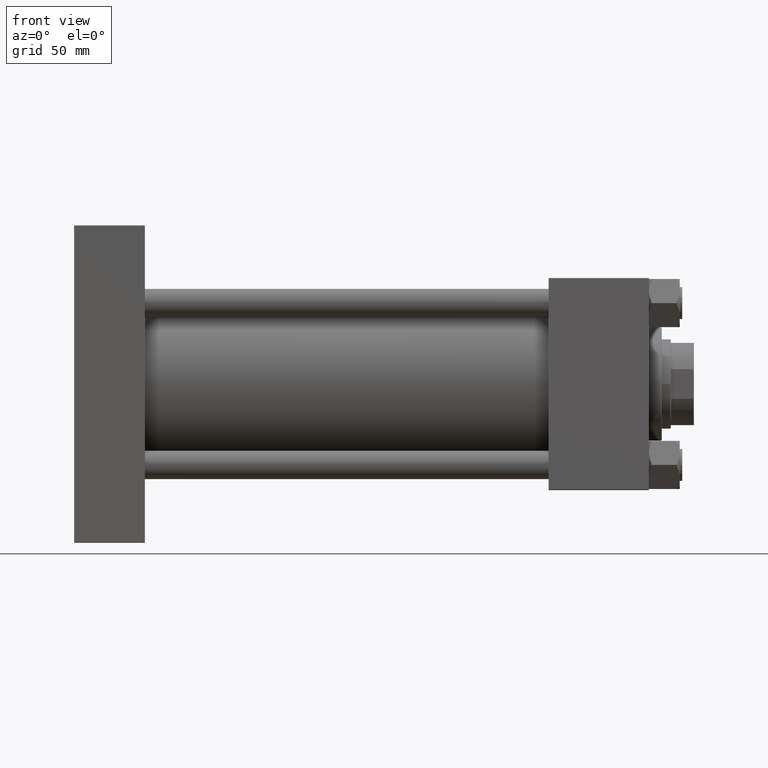
[diagram: clean part render]
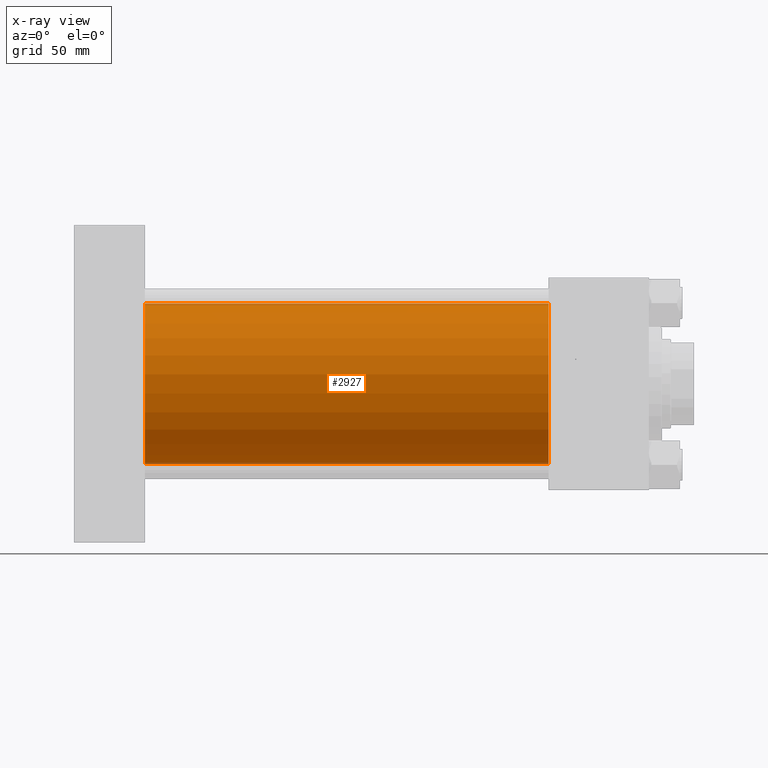
[diagram: x-ray — body ghosted, one internal face saturated and labeled with its STEP entity id]
A machine part, front view, then the same camera in x-ray: the body is ghosted and one INTERNAL B-rep face — a face not visible from any outside direction — is saturated and labeled: STEP entity #2927.
In plain terms, the highlighted cylindrical surface (partial cylindrical patch) has radius 62.5 mm, axis along (-1, -0, -0).
Its self-contained STEP definition (entity closure, byte-faithful):
#379 = CIRCLE ( 'NONE', #38649, 62.50000000000000000 ) ;
#2339 = CARTESIAN_POINT ( 'NONE',  ( 369.0000000000000000, -2.602085213965210642E-15, 62.50000000000000000 ) ) ;
#2927 = ADVANCED_FACE ( 'NONE', ( #4771 ), #4239, .F. ) ;
#3679 = VECTOR ( 'NONE', #14847, 1000.000000000000000 ) ;
#3876 = CARTESIAN_POINT ( 'NONE',  ( 55.00000000000000000, -2.602085213965210642E-15, 62.50000000000000000 ) ) ;
#4239 = CYLINDRICAL_SURFACE ( 'NONE', #20784, 62.50000000000000000 ) ;
#4771 = FACE_OUTER_BOUND ( 'NONE', #18594, .T. ) ;
#7022 = CIRCLE ( 'NONE', #39328, 62.50000000000000000 ) ;
#7930 = ORIENTED_EDGE ( 'NONE', *, *, #43739, .T. ) ;
#11042 = CARTESIAN_POINT ( 'NONE',  ( 369.0000000000000000, 5.051957280705747162E-15, -62.50000000000000000 ) ) ;
#14847 = DIRECTION ( 'NONE',  ( -1.000000000000000000, -0.000000000000000000, -0.000000000000000000 ) ) ;
#15750 = CARTESIAN_POINT ( 'NONE',  ( 369.0000000000000000, -2.602085213965210642E-15, 62.50000000000000000 ) ) ;
#18594 = EDGE_LOOP ( 'NONE', ( #7930, #50452, #28328, #32013 ) ) ;
#20480 = DIRECTION ( 'NONE',  ( -1.000000000000000000, -0.000000000000000000, -0.000000000000000000 ) ) ;
#20784 = AXIS2_PLACEMENT_3D ( 'NONE', #37251, #20480, #28489 ) ;
#22277 = VERTEX_POINT ( 'NONE', #11042 ) ;
#22575 = LINE ( 'NONE', #2339, #3679 ) ;
#24886 = EDGE_CURVE ( 'NONE', #22277, #32563, #47561, .T. ) ;
#27022 = DIRECTION ( 'NONE',  ( 1.000000000000000000, 0.000000000000000000, 0.000000000000000000 ) ) ;
#28328 = ORIENTED_EDGE ( 'NONE', *, *, #48391, .F. ) ;
#28489 = DIRECTION ( 'NONE',  ( 0.000000000000000000, 0.000000000000000000, 1.000000000000000000 ) ) ;
#32013 = ORIENTED_EDGE ( 'NONE', *, *, #45379, .F. ) ;
#32563 = VERTEX_POINT ( 'NONE', #51388 ) ;
#35527 = VECTOR ( 'NONE', #48613, 1000.000000000000000 ) ;
#36380 = CARTESIAN_POINT ( 'NONE',  ( 369.0000000000000000, 5.051957280705747162E-15, -62.50000000000000000 ) ) ;
#36561 = DIRECTION ( 'NONE',  ( 1.000000000000000000, 0.000000000000000000, 0.000000000000000000 ) ) ;
#37251 = CARTESIAN_POINT ( 'NONE',  ( 369.0000000000000000, -2.602085213965210642E-15, 0.000000000000000000 ) ) ;
#37353 = DIRECTION ( 'NONE',  ( 0.000000000000000000, 0.000000000000000000, -1.000000000000000000 ) ) ;
#38649 = AXIS2_PLACEMENT_3D ( 'NONE', #51202, #27022, #52273 ) ;
#39328 = AXIS2_PLACEMENT_3D ( 'NONE', #49063, #36561, #37353 ) ;
#40743 = VERTEX_POINT ( 'NONE', #15750 ) ;
#42465 = VERTEX_POINT ( 'NONE', #3876 ) ;
#43739 = EDGE_CURVE ( 'NONE', #40743, #22277, #7022, .T. ) ;
#45379 = EDGE_CURVE ( 'NONE', #40743, #42465, #22575, .T. ) ;
#47561 = LINE ( 'NONE', #36380, #35527 ) ;
#48391 = EDGE_CURVE ( 'NONE', #42465, #32563, #379, .T. ) ;
#48613 = DIRECTION ( 'NONE',  ( -1.000000000000000000, -0.000000000000000000, -0.000000000000000000 ) ) ;
#49063 = CARTESIAN_POINT ( 'NONE',  ( 369.0000000000000000, -2.602085213965210642E-15, 0.000000000000000000 ) ) ;
#50452 = ORIENTED_EDGE ( 'NONE', *, *, #24886, .T. ) ;
#51202 = CARTESIAN_POINT ( 'NONE',  ( 55.00000000000000000, -2.602085213965210642E-15, 0.000000000000000000 ) ) ;
#51388 = CARTESIAN_POINT ( 'NONE',  ( 55.00000000000000000, 5.051957280705747162E-15, -62.50000000000000000 ) ) ;
#52273 = DIRECTION ( 'NONE',  ( 0.000000000000000000, 0.000000000000000000, -1.000000000000000000 ) ) ;